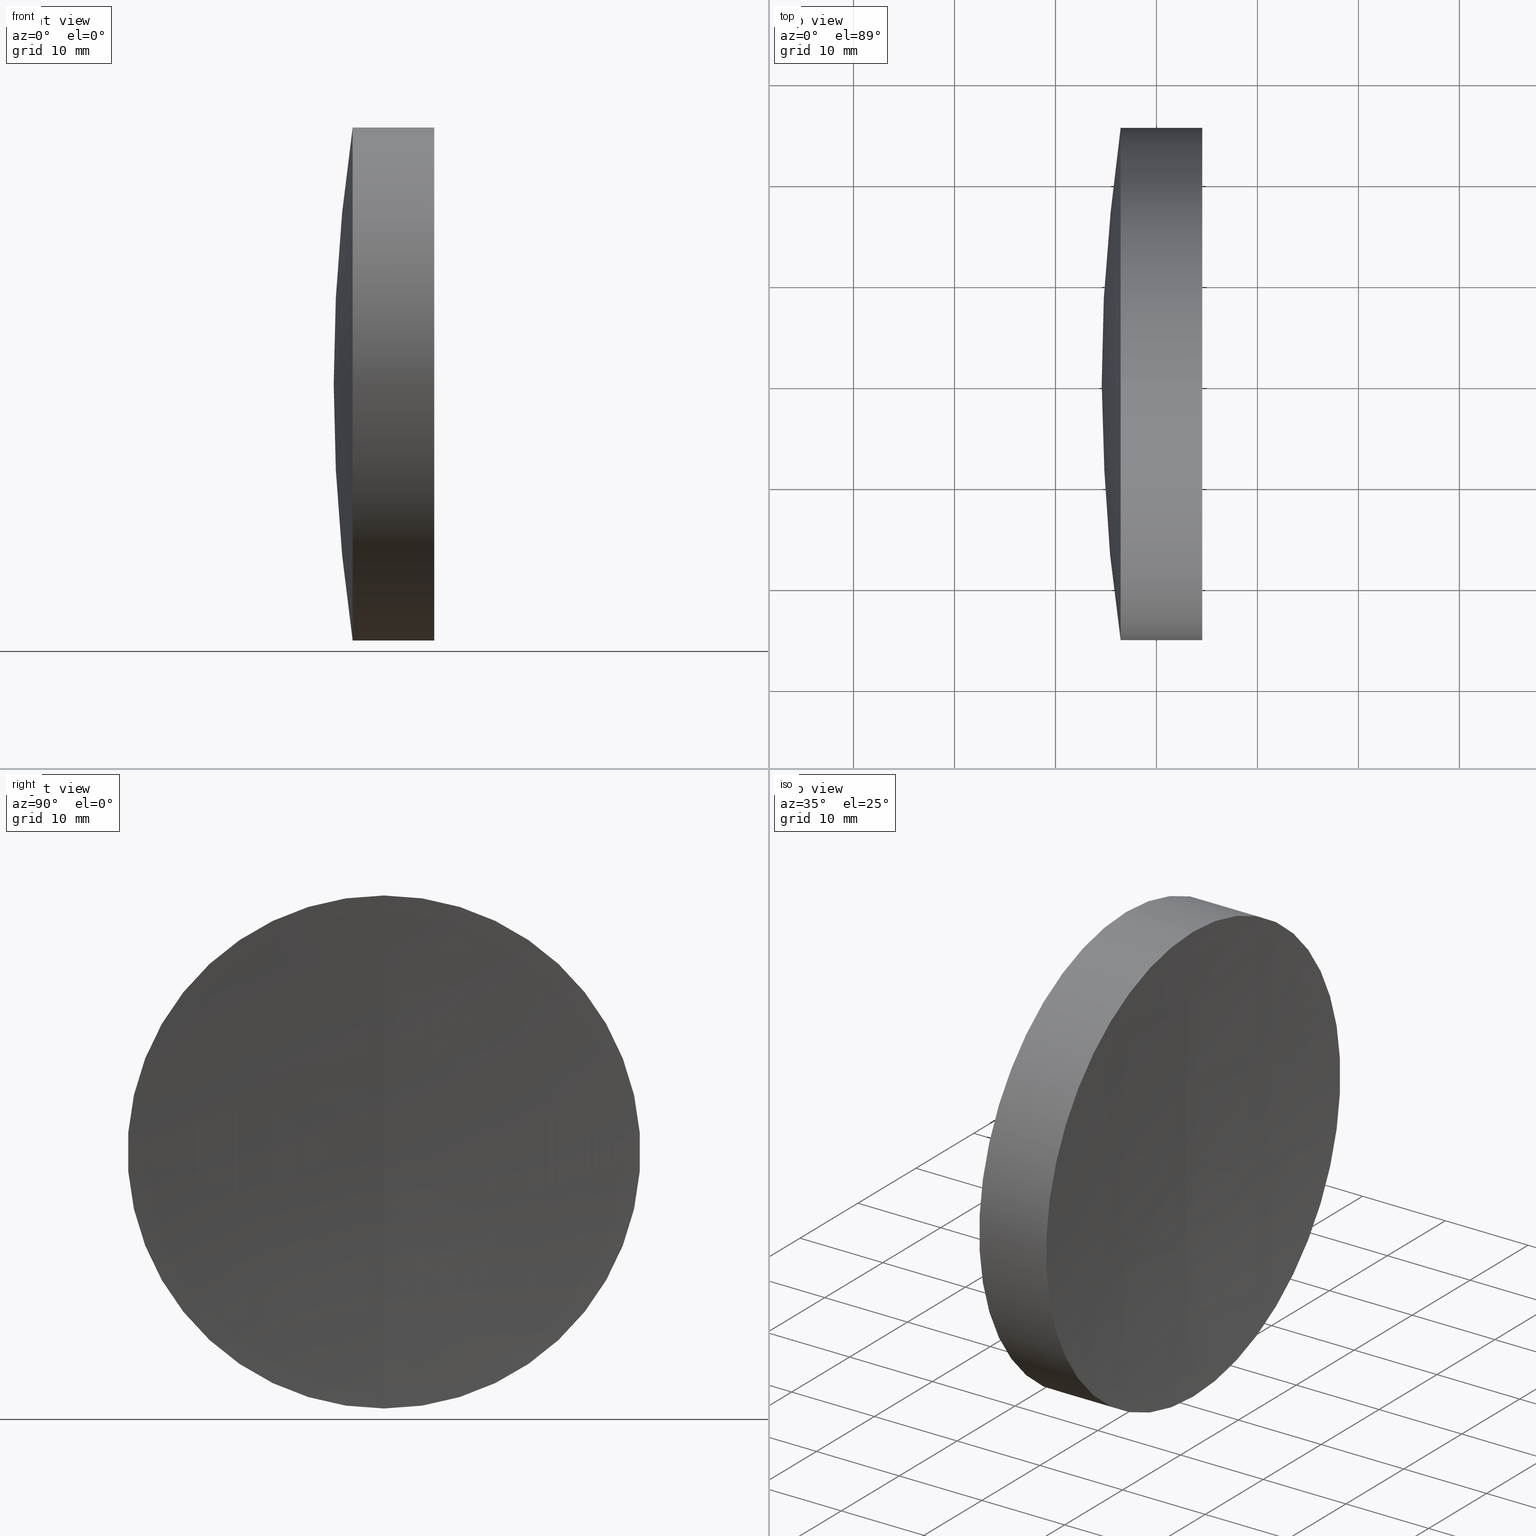
[diagram: canonical four-view strip — front | top / right | iso, engineering-drawing reading convention]
A machine part, canonical four-view strip (front | top / right | iso — engineering-drawing reading convention). The complete STEP part file that produces these views, byte-faithful:
ISO-10303-21;
HEADER;
FILE_DESCRIPTION (( 'STEP AP214' ),
    '1' );
FILE_NAME ('145186.STEP',
    '2019-06-13T02:34:22',
    ( 'user' ),
    ( '΢���й�' ),
    'SwSTEP 2.0',
    'SolidWorks 2016',
    '' );
FILE_SCHEMA (( 'AUTOMOTIVE_DESIGN' ));
ENDSEC;

DATA;
#1 = ORIENTED_EDGE ( 'NONE', *, *, #144, .T. ) ;
#2 = CIRCLE ( 'NONE', #26, 234.2700000000004600 ) ;
#3 = VERTEX_POINT ( 'NONE', #123 ) ;
#4 = MANIFOLD_SOLID_BREP ( '��ת1', #128 ) ;
#5 = EDGE_CURVE ( 'NONE', #203, #8, #295, .T. ) ;
#6 = AXIS2_PLACEMENT_3D ( 'NONE', #253, #281, #106 ) ;
#7 = CIRCLE ( 'NONE', #66, 234.2700000000004600 ) ;
#8 = VERTEX_POINT ( 'NONE', #92 ) ;
#9 = ADVANCED_FACE ( 'NONE', ( #251 ), #209, .T. ) ;
#10 = ORIENTED_EDGE ( 'NONE', *, *, #285, .F. ) ;
#11 =( NAMED_UNIT ( * ) PLANE_ANGLE_UNIT ( ) SI_UNIT ( $, .RADIAN. ) );
#12 = DIRECTION ( 'NONE',  ( 0.0000000000000000000, -1.000000000000000000, -1.224646799147353200E-016 ) ) ;
#13 = ORIENTED_EDGE ( 'NONE', *, *, #5, .F. ) ;
#14 = ORIENTED_EDGE ( 'NONE', *, *, #277, .F. ) ;
#15 = AXIS2_PLACEMENT_3D ( 'NONE', #54, #231, #284 ) ;
#16 = DIRECTION ( 'NONE',  ( 0.0000000000000000000, 0.0000000000000000000, 1.000000000000000000 ) ) ;
#17 = DIRECTION ( 'NONE',  ( 0.0000000000000000000, 0.0000000000000000000, 1.000000000000000000 ) ) ;
#18 = CARTESIAN_POINT ( 'NONE',  ( 86.30790026873805200, 0.0000000000000000000, 2.916250489981909800E-014 ) ) ;
#19 = COLOUR_RGB ( '',1.000000000000000000, 1.000000000000000000, 1.000000000000000000 ) ;
#20 = VECTOR ( 'NONE', #265, 1000.000000000000000 ) ;
#21 = ORIENTED_EDGE ( 'NONE', *, *, #93, .T. ) ;
#22 = CARTESIAN_POINT ( 'NONE',  ( -0.8160621761658039000, 0.0000000000000000000, 0.0000000000000000000 ) ) ;
#23 = EDGE_CURVE ( 'NONE', #115, #275, #194, .T. ) ;
#24 = ORIENTED_EDGE ( 'NONE', *, *, #183, .T. ) ;
#25 = EDGE_LOOP ( 'NONE', ( #34, #21, #109 ) ) ;
#26 = AXIS2_PLACEMENT_3D ( 'NONE', #343, #75, #228 ) ;
#27 = DIRECTION ( 'NONE',  ( 0.0000000000000000000, 0.0000000000000000000, 1.000000000000000000 ) ) ;
#28 = CARTESIAN_POINT ( 'NONE',  ( 487.5579002687381400, 0.0000000000000000000, 2.454820155283582600E-014 ) ) ;
#29 = ORIENTED_EDGE ( 'NONE', *, *, #222, .F. ) ;
#30 = MANIFOLD_SOLID_BREP ( '��ת2', #346 ) ;
#31 = ORIENTED_EDGE ( 'NONE', *, *, #144, .F. ) ;
#32 = ORIENTED_EDGE ( 'NONE', *, *, #205, .F. ) ;
#33 = PRODUCT_DEFINITION_CONTEXT ( 'detailed design', #165, 'design' ) ;
#34 = ORIENTED_EDGE ( 'NONE', *, *, #323, .F. ) ;
#35 = ORIENTED_EDGE ( 'NONE', *, *, #193, .F. ) ;
#36 = CARTESIAN_POINT ( 'NONE',  ( 319.1968714545806200, 0.0000000000000000000, -25.39999999999997700 ) ) ;
#37 = FILL_AREA_STYLE ('',( #91 ) ) ;
#38 =( NAMED_UNIT ( * ) SI_UNIT ( $, .STERADIAN. ) SOLID_ANGLE_UNIT ( ) );
#39 = AXIS2_PLACEMENT_3D ( 'NONE', #56, #289, #83 ) ;
#40 = ORIENTED_EDGE ( 'NONE', *, *, #183, .F. ) ;
#41 = FACE_OUTER_BOUND ( 'NONE', #25, .T. ) ;
#42 = DIRECTION ( 'NONE',  ( 0.0000000000000000000, 0.0000000000000000000, -1.000000000000000000 ) ) ;
#43 = AXIS2_PLACEMENT_3D ( 'NONE', #28, #12, #104 ) ;
#44 =( NAMED_UNIT ( * ) SI_UNIT ( $, .STERADIAN. ) SOLID_ANGLE_UNIT ( ) );
#45 = ORIENTED_EDGE ( 'NONE', *, *, #116, .T. ) ;
#46 = CARTESIAN_POINT ( 'NONE',  ( 316.4529020951019900, 0.0000000000000000000, 0.0000000000000000000 ) ) ;
#47 = EDGE_LOOP ( 'NONE', ( #233, #60, #296 ) ) ;
#48 = ADVANCED_FACE ( 'NONE', ( #147 ), #148, .F. ) ;
#49 = DIRECTION ( 'NONE',  ( -1.000000000000000000, -0.0000000000000000000, -0.0000000000000000000 ) ) ;
#50 = FILL_AREA_STYLE_COLOUR ( '', #178 ) ;
#51 = ADVANCED_FACE ( 'NONE', ( #162 ), #134, .T. ) ;
#52 = FILL_AREA_STYLE ('',( #50 ) ) ;
#53 = ORIENTED_EDGE ( 'NONE', *, *, #5, .T. ) ;
#54 = CARTESIAN_POINT ( 'NONE',  ( 487.5579002687381400, 0.0000000000000000000, 2.454820155283582600E-014 ) ) ;
#55 = ORIENTED_EDGE ( 'NONE', *, *, #23, .F. ) ;
#56 = CARTESIAN_POINT ( 'NONE',  ( -0.5519199926577972300, 0.0000000000000000000, 0.0000000000000000000 ) ) ;
#57 = DIRECTION ( 'NONE',  ( -0.0000000000000000000, -1.000000000000000000, -0.0000000000000000000 ) ) ;
#58 = AXIS2_PLACEMENT_3D ( 'NONE', #22, #112, #264 ) ;
#59 = DIRECTION ( 'NONE',  ( -1.000000000000000000, -0.0000000000000000000, -0.0000000000000000000 ) ) ;
#60 = ORIENTED_EDGE ( 'NONE', *, *, #323, .T. ) ;
#61 = ORIENTED_EDGE ( 'NONE', *, *, #285, .T. ) ;
#62 = UNCERTAINTY_MEASURE_WITH_UNIT (LENGTH_MEASURE( 1.000000000000000100E-005 ), #69, 'distance_accuracy_value', 'NONE');
#63 = CIRCLE ( 'NONE', #6, 25.40000000000002300 ) ;
#64 = ORIENTED_EDGE ( 'NONE', *, *, #197, .F. ) ;
#65 = SURFACE_SIDE_STYLE ('',( #245 ) ) ;
#66 = AXIS2_PLACEMENT_3D ( 'NONE', #110, #306, #154 ) ;
#67 = ORIENTED_EDGE ( 'NONE', *, *, #312, .F. ) ;
#68 = FACE_OUTER_BOUND ( 'NONE', #96, .T. ) ;
#69 =( LENGTH_UNIT ( ) NAMED_UNIT ( * ) SI_UNIT ( .MILLI., .METRE. ) );
#70 = ADVANCED_FACE ( 'NONE', ( #153 ), #143, .T. ) ;
#71 = PRESENTATION_STYLE_ASSIGNMENT (( #214 ) ) ;
#72 = CARTESIAN_POINT ( 'NONE',  ( 320.5779002687385700, 0.0000000000000000000, 4.350740518163165400E-014 ) ) ;
#73 = ORIENTED_EDGE ( 'NONE', *, *, #292, .F. ) ;
#74 = DIRECTION ( 'NONE',  ( 0.0000000000000000000, -1.000000000000000000, -1.224646799147353200E-016 ) ) ;
#75 = DIRECTION ( 'NONE',  ( -0.0000000000000000000, 1.000000000000000000, 1.224646799147353200E-016 ) ) ;
#76 = CARTESIAN_POINT ( 'NONE',  ( 314.5779002687381200, 0.0000000000000000000, 1.395623138701036400E-014 ) ) ;
#77 = ADVANCED_FACE ( 'NONE', ( #149 ), #327, .T. ) ;
#78 = VERTEX_POINT ( 'NONE', #256 ) ;
#79 = CIRCLE ( 'NONE', #298, 25.40000000000002300 ) ;
#80 = DIRECTION ( 'NONE',  ( -1.000000000000000000, -0.0000000000000000000, -0.0000000000000000000 ) ) ;
#81 = ADVANCED_FACE ( 'NONE', ( #326 ), #140, .T. ) ;
#82 = ORIENTED_EDGE ( 'NONE', *, *, #277, .T. ) ;
#83 = DIRECTION ( 'NONE',  ( 0.0000000000000000000, 0.0000000000000000000, 1.000000000000000000 ) ) ;
#84 = CARTESIAN_POINT ( 'NONE',  ( 487.5579002687381400, 0.0000000000000000000, 2.454820155283582600E-014 ) ) ;
#85 =( NAMED_UNIT ( * ) SI_UNIT ( $, .STERADIAN. ) SOLID_ANGLE_UNIT ( ) );
#86 = AXIS2_PLACEMENT_3D ( 'NONE', #257, #182, #122 ) ;
#87 = CARTESIAN_POINT ( 'NONE',  ( -0.8160621761658039000, 0.0000000000000000000, 25.40000000000002300 ) ) ;
#88 = DIRECTION ( 'NONE',  ( 0.0000000000000000000, 0.0000000000000000000, -1.000000000000000000 ) ) ;
#89 = AXIS2_PLACEMENT_3D ( 'NONE', #226, #219, #238 ) ;
#90 = CIRCLE ( 'NONE', #131, 25.40000000000000200 ) ;
#91 = FILL_AREA_STYLE_COLOUR ( '', #247 ) ;
#92 = CARTESIAN_POINT ( 'NONE',  ( 316.4529020951019900, 0.0000000000000000000, -25.39999999999998400 ) ) ;
#93 = EDGE_CURVE ( 'NONE', #293, #275, #329, .T. ) ;
#94 = VERTEX_POINT ( 'NONE', #235 ) ;
#95 = EDGE_LOOP ( 'NONE', ( #100, #111, #29, #55 ) ) ;
#96 = EDGE_LOOP ( 'NONE', ( #73, #82, #10 ) ) ;
#97 = MECHANICAL_DESIGN_GEOMETRIC_PRESENTATION_REPRESENTATION (  '', ( #316 ), #152 ) ;
#98 = ADVANCED_FACE ( 'NONE', ( #142 ), #324, .T. ) ;
#99 = PRODUCT_DEFINITION_SHAPE ( 'NONE', 'NONE',  #113 ) ;
#100 = ORIENTED_EDGE ( 'NONE', *, *, #157, .T. ) ;
#101 = ORIENTED_EDGE ( 'NONE', *, *, #193, .T. ) ;
#102 = CARTESIAN_POINT ( 'NONE',  ( 324.5393353243428600, 0.0000000000000000000, 0.0000000000000000000 ) ) ;
#103 = AXIS2_PLACEMENT_3D ( 'NONE', #102, #278, #184 ) ;
#104 = DIRECTION ( 'NONE',  ( 0.0000000000000000000, 1.224646799147353200E-016, -1.000000000000000000 ) ) ;
#105 = PRESENTATION_LAYER_ASSIGNMENT (  '', '', ( #316 ) ) ;
#106 = DIRECTION ( 'NONE',  ( 0.0000000000000000000, 0.0000000000000000000, 1.000000000000000000 ) ) ;
#107 = ADVANCED_FACE ( 'NONE', ( #151 ), #337, .F. ) ;
#108 = VECTOR ( 'NONE', #321, 1000.000000000000000 ) ;
#109 = ORIENTED_EDGE ( 'NONE', *, *, #222, .T. ) ;
#110 = CARTESIAN_POINT ( 'NONE',  ( 86.30790026873805200, 0.0000000000000000000, 2.916250489981909800E-014 ) ) ;
#111 = ORIENTED_EDGE ( 'NONE', *, *, #210, .T. ) ;
#112 = DIRECTION ( 'NONE',  ( -1.000000000000000000, -0.0000000000000000000, -0.0000000000000000000 ) ) ;
#113 = PRODUCT_DEFINITION ( 'δ֪', '', #224, #33 ) ;
#114 = DIRECTION ( 'NONE',  ( -0.0000000000000000000, -1.000000000000000000, -0.0000000000000000000 ) ) ;
#115 = VERTEX_POINT ( 'NONE', #204 ) ;
#116 = EDGE_CURVE ( 'NONE', #115, #3, #338, .T. ) ;
#117 = SURFACE_SIDE_STYLE ('',( #196 ) ) ;
#118 = CARTESIAN_POINT ( 'NONE',  ( -0.5519199926577972300, 0.0000000000000000000, 25.39999999999999900 ) ) ;
#119 = ORIENTED_EDGE ( 'NONE', *, *, #210, .F. ) ;
#120 = CARTESIAN_POINT ( 'NONE',  ( 319.1968714545806200, 0.0000000000000000000, 25.40000000000002300 ) ) ;
#121 = DIRECTION ( 'NONE',  ( 0.0000000000000000000, 0.0000000000000000000, 1.000000000000000000 ) ) ;
#122 = DIRECTION ( 'NONE',  ( 0.0000000000000000000, 1.224646799147353200E-016, -1.000000000000000000 ) ) ;
#123 = CARTESIAN_POINT ( 'NONE',  ( 323.5779002687384600, 0.0000000000000000000, -2.057406622567553600E-014 ) ) ;
#124 = AXIS2_PLACEMENT_3D ( 'NONE', #334, #177, #160 ) ;
#125 = ORIENTED_EDGE ( 'NONE', *, *, #244, .F. ) ;
#126 = CIRCLE ( 'NONE', #103, 25.39999999999999900 ) ;
#127 = PRODUCT_RELATED_PRODUCT_CATEGORY ( 'part', '', ( #185 ) ) ;
#128 = CLOSED_SHELL ( 'NONE', ( #70, #132, #81, #98, #77, #200 ) ) ;
#129 = EDGE_LOOP ( 'NONE', ( #125, #53, #313 ) ) ;
#130 = PRESENTATION_LAYER_ASSIGNMENT (  '', '', ( #336 ) ) ;
#131 = AXIS2_PLACEMENT_3D ( 'NONE', #280, #133, #307 ) ;
#132 = ADVANCED_FACE ( 'NONE', ( #187 ), #342, .T. ) ;
#133 = DIRECTION ( 'NONE',  ( -1.000000000000000000, -0.0000000000000000000, -0.0000000000000000000 ) ) ;
#134 = CYLINDRICAL_SURFACE ( 'NONE', #39, 25.39999999999999900 ) ;
#135 = LINE ( 'NONE', #206, #310 ) ;
#136 = ADVANCED_FACE ( 'NONE', ( #331 ), #335, .F. ) ;
#137 = CARTESIAN_POINT ( 'NONE',  ( 86.30790026873805200, 0.0000000000000000000, 2.916250489981909800E-014 ) ) ;
#138 = CARTESIAN_POINT ( 'NONE',  ( 86.30790026873805200, 0.0000000000000000000, 2.916250489981909800E-014 ) ) ;
#139 = AXIS2_PLACEMENT_3D ( 'NONE', #84, #57, #88 ) ;
#140 = SPHERICAL_SURFACE ( 'NONE', #15, 172.9800000000000500 ) ;
#141 = DIRECTION ( 'NONE',  ( 0.0000000000000000000, 0.0000000000000000000, -1.000000000000000000 ) ) ;
#142 = FACE_OUTER_BOUND ( 'NONE', #129, .T. ) ;
#143 = SPHERICAL_SURFACE ( 'NONE', #261, 234.2700000000004600 ) ;
#144 = EDGE_CURVE ( 'NONE', #8, #203, #79, .T. ) ;
#145 =( NAMED_UNIT ( * ) PLANE_ANGLE_UNIT ( ) SI_UNIT ( $, .RADIAN. ) );
#146 = CARTESIAN_POINT ( 'NONE',  ( 319.1968714545806200, 0.0000000000000000000, 0.0000000000000000000 ) ) ;
#147 = FACE_OUTER_BOUND ( 'NONE', #47, .T. ) ;
#148 = SPHERICAL_SURFACE ( 'NONE', #297, 234.2700000000004600 ) ;
#149 = FACE_OUTER_BOUND ( 'NONE', #159, .T. ) ;
#150 = ORIENTED_EDGE ( 'NONE', *, *, #205, .T. ) ;
#151 = FACE_OUTER_BOUND ( 'NONE', #309, .T. ) ;
#152 =( GEOMETRIC_REPRESENTATION_CONTEXT ( 3 ) GLOBAL_UNCERTAINTY_ASSIGNED_CONTEXT ( ( #62 ) ) GLOBAL_UNIT_ASSIGNED_CONTEXT ( ( #69, #290, #44 ) ) REPRESENTATION_CONTEXT ( 'NONE', 'WORKASPACE' ) );
#153 = FACE_OUTER_BOUND ( 'NONE', #259, .T. ) ;
#154 = DIRECTION ( 'NONE',  ( 0.0000000000000000000, 0.0000000000000000000, -1.000000000000000000 ) ) ;
#155 = AXIS2_PLACEMENT_3D ( 'NONE', #137, #158, #308 ) ;
#156 = CARTESIAN_POINT ( 'NONE',  ( 86.30790026873805200, 0.0000000000000000000, 2.916250489981909800E-014 ) ) ;
#157 = EDGE_CURVE ( 'NONE', #115, #78, #126, .T. ) ;
#158 = DIRECTION ( 'NONE',  ( 0.0000000000000000000, 1.000000000000000000, -0.0000000000000000000 ) ) ;
#159 = EDGE_LOOP ( 'NONE', ( #40, #61, #300, #31 ) ) ;
#160 = DIRECTION ( 'NONE',  ( 0.0000000000000000000, 0.0000000000000000000, 1.000000000000000000 ) ) ;
#161 = UNCERTAINTY_MEASURE_WITH_UNIT (LENGTH_MEASURE( 1.000000000000000100E-005 ), #227, 'distance_accuracy_value', 'NONE');
#162 = FACE_OUTER_BOUND ( 'NONE', #268, .T. ) ;
#163 = UNCERTAINTY_MEASURE_WITH_UNIT (LENGTH_MEASURE( 1.000000000000000100E-005 ), #211, 'distance_accuracy_value', 'NONE');
#164 = APPLICATION_PROTOCOL_DEFINITION ( 'draft international standard', 'automotive_design', 1998, #165 ) ;
#165 = APPLICATION_CONTEXT ( 'automotive_design' ) ;
#166 = CIRCLE ( 'NONE', #43, 172.9800000000000500 ) ;
#167 = DIRECTION ( 'NONE',  ( 0.0000000000000000000, 0.0000000000000000000, 1.000000000000000000 ) ) ;
#168 = CARTESIAN_POINT ( 'NONE',  ( 319.1968714545806200, -3.110602869834274100E-015, 25.40000000000000600 ) ) ;
#169 = PRODUCT_CONTEXT ( 'NONE', #195, 'mechanical' ) ;
#170 = AXIS2_PLACEMENT_3D ( 'NONE', #254, #189, #27 ) ;
#171 = CARTESIAN_POINT ( 'NONE',  ( -0.5519199926577972300, 3.110602869834276900E-015, -25.39999999999999900 ) ) ;
#172 = DIRECTION ( 'NONE',  ( 1.000000000000000000, 0.0000000000000000000, 0.0000000000000000000 ) ) ;
#173 = DIRECTION ( 'NONE',  ( 0.0000000000000000000, 0.0000000000000000000, 1.000000000000000000 ) ) ;
#174 = ORIENTED_EDGE ( 'NONE', *, *, #240, .F. ) ;
#175 = CARTESIAN_POINT ( 'NONE',  ( 0.0000000000000000000, 0.0000000000000000000, 0.0000000000000000000 ) ) ;
#176 =( NAMED_UNIT ( * ) SI_UNIT ( $, .STERADIAN. ) SOLID_ANGLE_UNIT ( ) );
#177 = DIRECTION ( 'NONE',  ( -1.000000000000000000, -0.0000000000000000000, -0.0000000000000000000 ) ) ;
#178 = COLOUR_RGB ( '',1.000000000000000000, 1.000000000000000000, 1.000000000000000000 ) ;
#179 = CARTESIAN_POINT ( 'NONE',  ( 86.30790026873805200, 0.0000000000000000000, 2.916250489981909800E-014 ) ) ;
#180 = APPLICATION_PROTOCOL_DEFINITION ( 'draft international standard', 'automotive_design', 1998, #195 ) ;
#181 = AXIS2_PLACEMENT_3D ( 'NONE', #175, #173, #172 ) ;
#182 = DIRECTION ( 'NONE',  ( 0.0000000000000000000, -1.000000000000000000, -1.224646799147353200E-016 ) ) ;
#183 = EDGE_CURVE ( 'NONE', #94, #8, #135, .T. ) ;
#184 = DIRECTION ( 'NONE',  ( 0.0000000000000000000, 0.0000000000000000000, 1.000000000000000000 ) ) ;
#185 = PRODUCT ( '145186', '145186', '', ( #169 ) ) ;
#186 = AXIS2_PLACEMENT_3D ( 'NONE', #311, #267, #141 ) ;
#187 = FACE_OUTER_BOUND ( 'NONE', #303, .T. ) ;
#188 =( LENGTH_UNIT ( ) NAMED_UNIT ( * ) SI_UNIT ( .MILLI., .METRE. ) );
#189 = DIRECTION ( 'NONE',  ( 0.0000000000000000000, 1.000000000000000000, -0.0000000000000000000 ) ) ;
#190 = DIRECTION ( 'NONE',  ( 0.0000000000000000000, 0.0000000000000000000, 1.000000000000000000 ) ) ;
#191 = AXIS2_PLACEMENT_3D ( 'NONE', #347, #80, #16 ) ;
#192 = PRESENTATION_STYLE_ASSIGNMENT (( #262 ) ) ;
#193 = EDGE_CURVE ( 'NONE', #78, #115, #252, .T. ) ;
#194 = LINE ( 'NONE', #118, #20 ) ;
#195 = APPLICATION_CONTEXT ( 'automotive_design' ) ;
#196 = SURFACE_STYLE_FILL_AREA ( #52 ) ;
#197 = EDGE_CURVE ( 'NONE', #279, #275, #90, .T. ) ;
#198 = DIRECTION ( 'NONE',  ( 0.0000000000000000000, 1.224646799147353200E-016, -1.000000000000000000 ) ) ;
#199 = DIRECTION ( 'NONE',  ( -1.000000000000000000, -0.0000000000000000000, -0.0000000000000000000 ) ) ;
#200 = ADVANCED_FACE ( 'NONE', ( #68 ), #218, .T. ) ;
#201 = CARTESIAN_POINT ( 'NONE',  ( 316.4529020951019900, 0.0000000000000000000, 0.0000000000000000000 ) ) ;
#202 = ADVANCED_FACE ( 'NONE', ( #41 ), #237, .F. ) ;
#203 = VERTEX_POINT ( 'NONE', #234 ) ;
#204 = CARTESIAN_POINT ( 'NONE',  ( 324.5393353243428600, -3.110602869834300900E-015, 25.40000000000019400 ) ) ;
#205 = EDGE_CURVE ( 'NONE', #78, #3, #242, .T. ) ;
#206 = CARTESIAN_POINT ( 'NONE',  ( -0.8160621761658039000, 3.110602869834280000E-015, -25.40000000000002300 ) ) ;
#207 = DIRECTION ( 'NONE',  ( 0.0000000000000000000, 0.0000000000000000000, 1.000000000000000000 ) ) ;
#208 = DIRECTION ( 'NONE',  ( -0.0000000000000000000, -1.000000000000000000, -0.0000000000000000000 ) ) ;
#209 = CYLINDRICAL_SURFACE ( 'NONE', #273, 25.39999999999999900 ) ;
#210 = EDGE_CURVE ( 'NONE', #78, #279, #230, .T. ) ;
#211 =( LENGTH_UNIT ( ) NAMED_UNIT ( * ) SI_UNIT ( .MILLI., .METRE. ) );
#212 = CARTESIAN_POINT ( 'NONE',  ( 320.5779002687385700, 0.0000000000000000000, 1.481760461800654800E-014 ) ) ;
#213 = AXIS2_PLACEMENT_3D ( 'NONE', #146, #291, #121 ) ;
#214 = SURFACE_STYLE_USAGE ( .BOTH. , #220 ) ;
#215 = DIRECTION ( 'NONE',  ( -0.0000000000000000000, -1.000000000000000000, -0.0000000000000000000 ) ) ;
#216 = ORIENTED_EDGE ( 'NONE', *, *, #270, .F. ) ;
#217 =( NAMED_UNIT ( * ) PLANE_ANGLE_UNIT ( ) SI_UNIT ( $, .RADIAN. ) );
#218 = SPHERICAL_SURFACE ( 'NONE', #320, 234.2700000000004600 ) ;
#219 = DIRECTION ( 'NONE',  ( 0.0000000000000000000, 1.000000000000000000, -0.0000000000000000000 ) ) ;
#220 = SURFACE_SIDE_STYLE ('',( #341 ) ) ;
#221 = FILL_AREA_STYLE ('',( #250 ) ) ;
#222 = EDGE_CURVE ( 'NONE', #275, #279, #330, .T. ) ;
#223 = ORIENTED_EDGE ( 'NONE', *, *, #292, .T. ) ;
#224 = PRODUCT_DEFINITION_FORMATION_WITH_SPECIFIED_SOURCE ( '�κ�', '', #185, .NOT_KNOWN. ) ;
#225 = CARTESIAN_POINT ( 'NONE',  ( -0.5519199926577972300, 0.0000000000000000000, 0.0000000000000000000 ) ) ;
#226 = CARTESIAN_POINT ( 'NONE',  ( 487.5579002687381400, 0.0000000000000000000, 2.454820155283582600E-014 ) ) ;
#227 =( LENGTH_UNIT ( ) NAMED_UNIT ( * ) SI_UNIT ( .MILLI., .METRE. ) );
#228 = DIRECTION ( 'NONE',  ( 0.0000000000000000000, -1.224646799147353200E-016, 1.000000000000000000 ) ) ;
#229 = AXIS2_PLACEMENT_3D ( 'NONE', #18, #114, #305 ) ;
#230 = LINE ( 'NONE', #171, #301 ) ;
#231 = DIRECTION ( 'NONE',  ( -0.0000000000000000000, -1.000000000000000000, -0.0000000000000000000 ) ) ;
#232 = DIRECTION ( 'NONE',  ( -1.000000000000000000, -0.0000000000000000000, -0.0000000000000000000 ) ) ;
#233 = ORIENTED_EDGE ( 'NONE', *, *, #93, .F. ) ;
#234 = CARTESIAN_POINT ( 'NONE',  ( 316.4529020951019900, -3.110602869834275700E-015, 25.40000000000001300 ) ) ;
#235 = CARTESIAN_POINT ( 'NONE',  ( 319.1968714545806200, 3.110602869834280000E-015, -25.40000000000002300 ) ) ;
#236 = DIRECTION ( 'NONE',  ( 0.0000000000000000000, 0.0000000000000000000, -1.000000000000000000 ) ) ;
#237 = SPHERICAL_SURFACE ( 'NONE', #229, 234.2700000000004600 ) ;
#238 = DIRECTION ( 'NONE',  ( 0.0000000000000000000, 0.0000000000000000000, 1.000000000000000000 ) ) ;
#239 = AXIS2_PLACEMENT_3D ( 'NONE', #138, #74, #198 ) ;
#240 = EDGE_CURVE ( 'NONE', #318, #203, #340, .T. ) ;
#241 = PRESENTATION_STYLE_ASSIGNMENT (( #328 ) ) ;
#242 = CIRCLE ( 'NONE', #170, 336.0000000000000600 ) ;
#243 = CARTESIAN_POINT ( 'NONE',  ( 86.30790026873805200, 0.0000000000000000000, 2.916250489981909800E-014 ) ) ;
#244 = EDGE_CURVE ( 'NONE', #203, #283, #166, .T. ) ;
#245 = SURFACE_STYLE_FILL_AREA ( #37 ) ;
#246 = CIRCLE ( 'NONE', #155, 234.2700000000004600 ) ;
#247 = COLOUR_RGB ( '',1.000000000000000000, 1.000000000000000000, 1.000000000000000000 ) ;
#248 =( GEOMETRIC_REPRESENTATION_CONTEXT ( 3 ) GLOBAL_UNCERTAINTY_ASSIGNED_CONTEXT ( ( #161 ) ) GLOBAL_UNIT_ASSIGNED_CONTEXT ( ( #227, #11, #38 ) ) REPRESENTATION_CONTEXT ( 'NONE', 'WORKASPACE' ) );
#249 = DIRECTION ( 'NONE',  ( -1.000000000000000000, -0.0000000000000000000, -0.0000000000000000000 ) ) ;
#250 = FILL_AREA_STYLE_COLOUR ( '', #19 ) ;
#251 = FACE_OUTER_BOUND ( 'NONE', #95, .T. ) ;
#252 = CIRCLE ( 'NONE', #124, 25.39999999999999900 ) ;
#253 = CARTESIAN_POINT ( 'NONE',  ( 319.1968714545806200, 0.0000000000000000000, 0.0000000000000000000 ) ) ;
#254 = CARTESIAN_POINT ( 'NONE',  ( 659.5779002687385200, 0.0000000000000000000, 0.0000000000000000000 ) ) ;
#255 = MECHANICAL_DESIGN_GEOMETRIC_PRESENTATION_REPRESENTATION (  '', ( #336 ), #272 ) ;
#256 = CARTESIAN_POINT ( 'NONE',  ( 324.5393353243428600, 0.0000000000000000000, -25.40000000000019400 ) ) ;
#257 = CARTESIAN_POINT ( 'NONE',  ( 659.5779002687385200, 0.0000000000000000000, 0.0000000000000000000 ) ) ;
#258 = MECHANICAL_DESIGN_GEOMETRIC_PRESENTATION_REPRESENTATION (  '', ( #282 ), #325 ) ;
#259 = EDGE_LOOP ( 'NONE', ( #14, #223, #67 ) ) ;
#260 = ORIENTED_EDGE ( 'NONE', *, *, #244, .T. ) ;
#261 = AXIS2_PLACEMENT_3D ( 'NONE', #179, #345, #167 ) ;
#262 = SURFACE_STYLE_USAGE ( .BOTH. , #117 ) ;
#263 = EDGE_LOOP ( 'NONE', ( #1, #260, #216 ) ) ;
#264 = DIRECTION ( 'NONE',  ( 0.0000000000000000000, 0.0000000000000000000, 1.000000000000000000 ) ) ;
#265 = DIRECTION ( 'NONE',  ( -1.000000000000000000, -0.0000000000000000000, -0.0000000000000000000 ) ) ;
#266 = PRESENTATION_LAYER_ASSIGNMENT (  '', '', ( #282 ) ) ;
#267 = DIRECTION ( 'NONE',  ( -0.0000000000000000000, -1.000000000000000000, -0.0000000000000000000 ) ) ;
#268 = EDGE_LOOP ( 'NONE', ( #119, #101, #287, #64 ) ) ;
#269 = VERTEX_POINT ( 'NONE', #72 ) ;
#270 = EDGE_CURVE ( 'NONE', #8, #283, #299, .T. ) ;
#271 = ORIENTED_EDGE ( 'NONE', *, *, #116, .F. ) ;
#272 =( GEOMETRIC_REPRESENTATION_CONTEXT ( 3 ) GLOBAL_UNCERTAINTY_ASSIGNED_CONTEXT ( ( #276 ) ) GLOBAL_UNIT_ASSIGNED_CONTEXT ( ( #188, #145, #85 ) ) REPRESENTATION_CONTEXT ( 'NONE', 'WORKASPACE' ) );
#273 = AXIS2_PLACEMENT_3D ( 'NONE', #225, #59, #190 ) ;
#274 = EDGE_LOOP ( 'NONE', ( #271, #35, #150 ) ) ;
#275 = VERTEX_POINT ( 'NONE', #168 ) ;
#276 = UNCERTAINTY_MEASURE_WITH_UNIT (LENGTH_MEASURE( 1.000000000000000100E-005 ), #188, 'distance_accuracy_value', 'NONE');
#277 = EDGE_CURVE ( 'NONE', #269, #318, #7, .T. ) ;
#278 = DIRECTION ( 'NONE',  ( -1.000000000000000000, -0.0000000000000000000, -0.0000000000000000000 ) ) ;
#279 = VERTEX_POINT ( 'NONE', #36 ) ;
#280 = CARTESIAN_POINT ( 'NONE',  ( 319.1968714545806200, 0.0000000000000000000, 0.0000000000000000000 ) ) ;
#281 = DIRECTION ( 'NONE',  ( -1.000000000000000000, -0.0000000000000000000, -0.0000000000000000000 ) ) ;
#282 = STYLED_ITEM ( 'NONE', ( #71 ), #288 ) ;
#283 = VERTEX_POINT ( 'NONE', #76 ) ;
#284 = DIRECTION ( 'NONE',  ( 0.0000000000000000000, 0.0000000000000000000, -1.000000000000000000 ) ) ;
#285 = EDGE_CURVE ( 'NONE', #94, #318, #286, .T. ) ;
#286 = CIRCLE ( 'NONE', #304, 25.40000000000002300 ) ;
#287 = ORIENTED_EDGE ( 'NONE', *, *, #23, .T. ) ;
#288 = ADVANCED_BREP_SHAPE_REPRESENTATION ( '145186', ( #4, #30, #181 ), #248 ) ;
#289 = DIRECTION ( 'NONE',  ( -1.000000000000000000, -0.0000000000000000000, -0.0000000000000000000 ) ) ;
#290 =( NAMED_UNIT ( * ) PLANE_ANGLE_UNIT ( ) SI_UNIT ( $, .RADIAN. ) );
#291 = DIRECTION ( 'NONE',  ( -1.000000000000000000, -0.0000000000000000000, -0.0000000000000000000 ) ) ;
#292 = EDGE_CURVE ( 'NONE', #269, #94, #2, .T. ) ;
#293 = VERTEX_POINT ( 'NONE', #212 ) ;
#294 = ORIENTED_EDGE ( 'NONE', *, *, #157, .F. ) ;
#295 = CIRCLE ( 'NONE', #302, 25.40000000000002300 ) ;
#296 = ORIENTED_EDGE ( 'NONE', *, *, #197, .T. ) ;
#297 = AXIS2_PLACEMENT_3D ( 'NONE', #243, #208, #236 ) ;
#298 = AXIS2_PLACEMENT_3D ( 'NONE', #46, #232, #17 ) ;
#299 = CIRCLE ( 'NONE', #89, 172.9800000000000500 ) ;
#300 = ORIENTED_EDGE ( 'NONE', *, *, #240, .T. ) ;
#301 = VECTOR ( 'NONE', #49, 1000.000000000000000 ) ;
#302 = AXIS2_PLACEMENT_3D ( 'NONE', #201, #317, #319 ) ;
#303 = EDGE_LOOP ( 'NONE', ( #315, #24, #13, #174 ) ) ;
#304 = AXIS2_PLACEMENT_3D ( 'NONE', #332, #199, #344 ) ;
#305 = DIRECTION ( 'NONE',  ( 0.0000000000000000000, 0.0000000000000000000, -1.000000000000000000 ) ) ;
#306 = DIRECTION ( 'NONE',  ( 0.0000000000000000000, -1.000000000000000000, 0.0000000000000000000 ) ) ;
#307 = DIRECTION ( 'NONE',  ( 0.0000000000000000000, 0.0000000000000000000, 1.000000000000000000 ) ) ;
#308 = DIRECTION ( 'NONE',  ( 0.0000000000000000000, 0.0000000000000000000, 1.000000000000000000 ) ) ;
#309 = EDGE_LOOP ( 'NONE', ( #294, #45, #32 ) ) ;
#310 = VECTOR ( 'NONE', #249, 1000.000000000000000 ) ;
#311 = CARTESIAN_POINT ( 'NONE',  ( 659.5779002687385200, 0.0000000000000000000, 0.0000000000000000000 ) ) ;
#312 = EDGE_CURVE ( 'NONE', #318, #94, #63, .T. ) ;
#313 = ORIENTED_EDGE ( 'NONE', *, *, #270, .T. ) ;
#314 = DIRECTION ( 'NONE',  ( 0.0000000000000000000, 1.000000000000000000, 0.0000000000000000000 ) ) ;
#315 = ORIENTED_EDGE ( 'NONE', *, *, #312, .T. ) ;
#316 = STYLED_ITEM ( 'NONE', ( #241 ), #4 ) ;
#317 = DIRECTION ( 'NONE',  ( -1.000000000000000000, -0.0000000000000000000, -0.0000000000000000000 ) ) ;
#318 = VERTEX_POINT ( 'NONE', #120 ) ;
#319 = DIRECTION ( 'NONE',  ( 0.0000000000000000000, 0.0000000000000000000, 1.000000000000000000 ) ) ;
#320 = AXIS2_PLACEMENT_3D ( 'NONE', #156, #314, #207 ) ;
#321 = DIRECTION ( 'NONE',  ( -1.000000000000000000, -0.0000000000000000000, -0.0000000000000000000 ) ) ;
#322 = CARTESIAN_POINT ( 'NONE',  ( 659.5779002687385200, 0.0000000000000000000, 0.0000000000000000000 ) ) ;
#323 = EDGE_CURVE ( 'NONE', #293, #279, #246, .T. ) ;
#324 = SPHERICAL_SURFACE ( 'NONE', #139, 172.9800000000000500 ) ;
#325 =( GEOMETRIC_REPRESENTATION_CONTEXT ( 3 ) GLOBAL_UNCERTAINTY_ASSIGNED_CONTEXT ( ( #163 ) ) GLOBAL_UNIT_ASSIGNED_CONTEXT ( ( #211, #217, #176 ) ) REPRESENTATION_CONTEXT ( 'NONE', 'WORKASPACE' ) );
#326 = FACE_OUTER_BOUND ( 'NONE', #263, .T. ) ;
#327 = CYLINDRICAL_SURFACE ( 'NONE', #58, 25.40000000000002300 ) ;
#328 = SURFACE_STYLE_USAGE ( .BOTH. , #65 ) ;
#329 = CIRCLE ( 'NONE', #239, 234.2700000000004600 ) ;
#330 = CIRCLE ( 'NONE', #213, 25.40000000000000200 ) ;
#331 = FACE_OUTER_BOUND ( 'NONE', #274, .T. ) ;
#332 = CARTESIAN_POINT ( 'NONE',  ( 319.1968714545806200, 0.0000000000000000000, 0.0000000000000000000 ) ) ;
#333 = SHAPE_DEFINITION_REPRESENTATION ( #99, #288 ) ;
#334 = CARTESIAN_POINT ( 'NONE',  ( 324.5393353243428600, 0.0000000000000000000, 0.0000000000000000000 ) ) ;
#335 = SPHERICAL_SURFACE ( 'NONE', #186, 336.0000000000000600 ) ;
#336 = STYLED_ITEM ( 'NONE', ( #192 ), #30 ) ;
#337 = SPHERICAL_SURFACE ( 'NONE', #339, 336.0000000000000600 ) ;
#338 = CIRCLE ( 'NONE', #86, 336.0000000000000600 ) ;
#339 = AXIS2_PLACEMENT_3D ( 'NONE', #322, #215, #42 ) ;
#340 = LINE ( 'NONE', #87, #108 ) ;
#341 = SURFACE_STYLE_FILL_AREA ( #221 ) ;
#342 = CYLINDRICAL_SURFACE ( 'NONE', #191, 25.40000000000002300 ) ;
#343 = CARTESIAN_POINT ( 'NONE',  ( 86.30790026873805200, 0.0000000000000000000, 2.916250489981909800E-014 ) ) ;
#344 = DIRECTION ( 'NONE',  ( 0.0000000000000000000, 0.0000000000000000000, 1.000000000000000000 ) ) ;
#345 = DIRECTION ( 'NONE',  ( 0.0000000000000000000, 1.000000000000000000, 0.0000000000000000000 ) ) ;
#346 = CLOSED_SHELL ( 'NONE', ( #9, #107, #202, #48, #136, #51 ) ) ;
#347 = CARTESIAN_POINT ( 'NONE',  ( -0.8160621761658039000, 0.0000000000000000000, 0.0000000000000000000 ) ) ;
ENDSEC;
END-ISO-10303-21;
